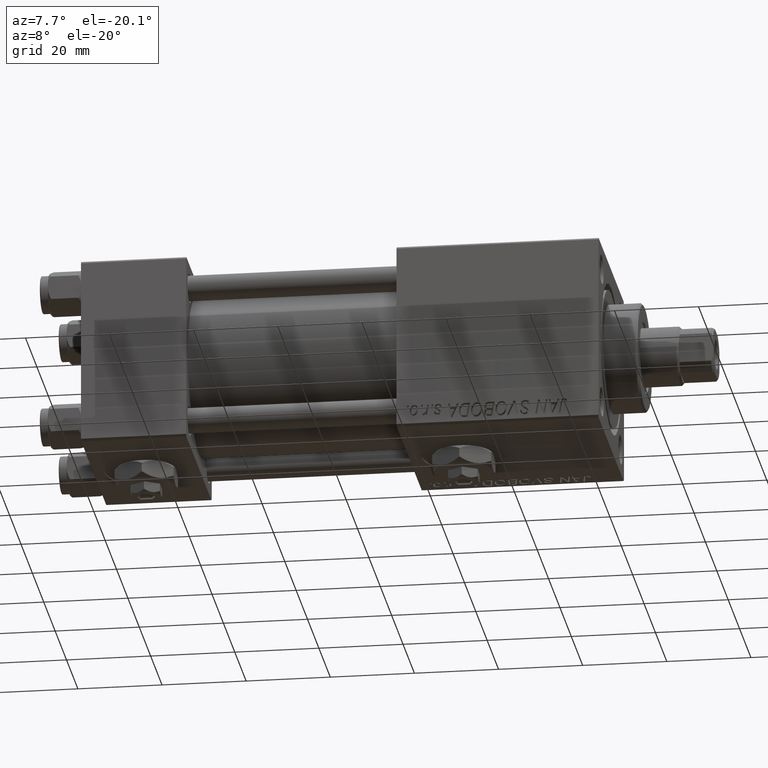
[diagram: clean part render]
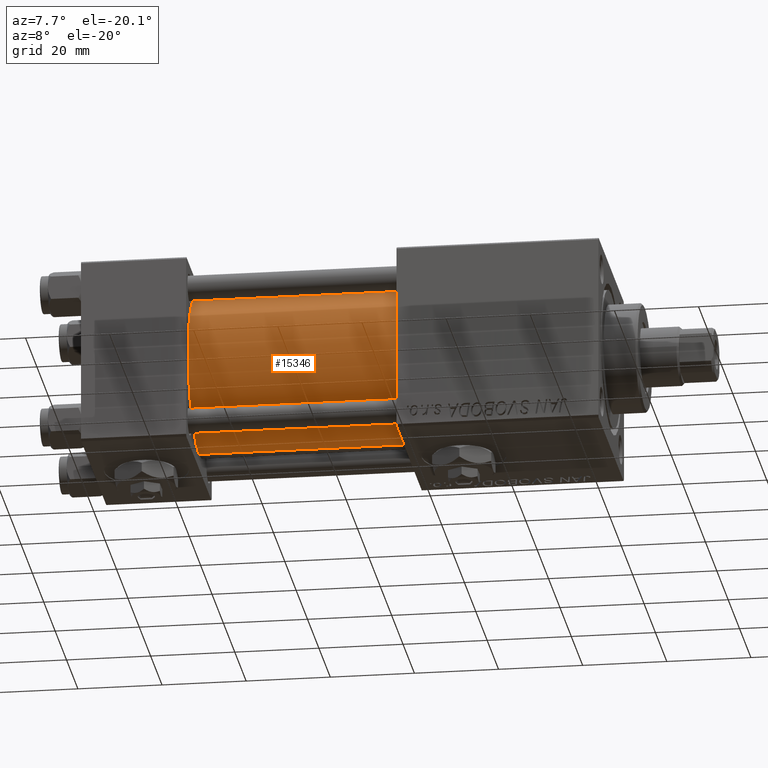
[diagram: same view with one face highlighted and labeled with its STEP entity id]
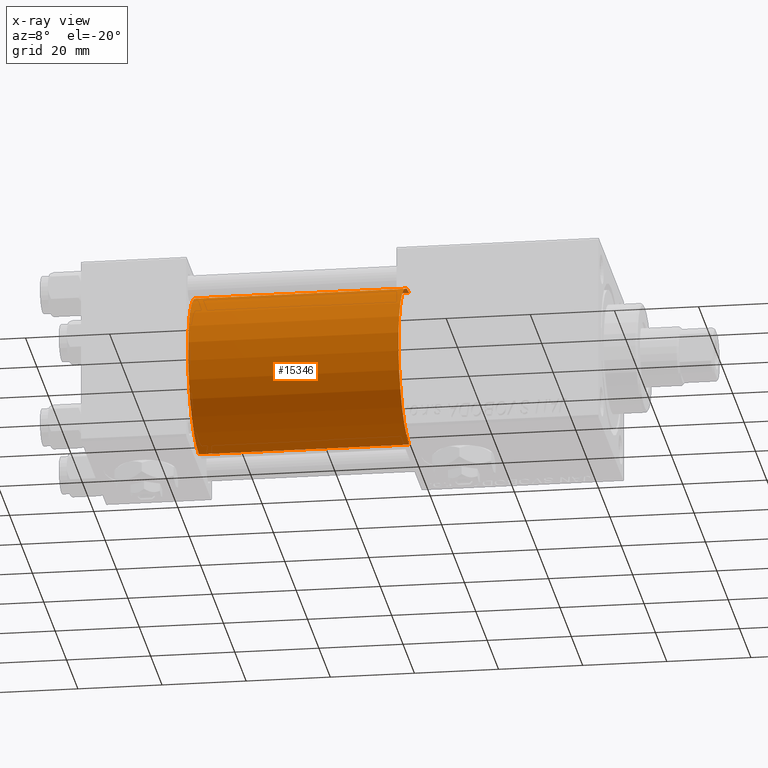
[diagram: x-ray of the same camera — body ghosted, the highlighted face saturated]
A machine part, auxiliary view. The second image highlights one B-rep face of the part: STEP entity #15346.
The next image is the same camera in x-ray: the body ghosted, the highlighted face saturated — about 0% of this face is hidden behind the body in this view.
In plain terms, the highlighted cylindrical surface (partial cylindrical patch) has radius 19 mm, axis along (-1, -0, -0).
Its self-contained STEP definition (entity closure, byte-faithful):
#661 = VERTEX_POINT ( 'NONE', #18632 ) ;
#1718 = CARTESIAN_POINT ( 'NONE',  ( 75.00000000000001421, -2.602085213965210642E-15, 19.00000000000000000 ) ) ;
#2271 = CARTESIAN_POINT ( 'NONE',  ( 25.00000000000000000, -2.602085213965210642E-15, 19.00000000000000000 ) ) ;
#2373 = AXIS2_PLACEMENT_3D ( 'NONE', #49753, #12820, #32868 ) ;
#2673 = AXIS2_PLACEMENT_3D ( 'NONE', #45140, #5039, #37481 ) ;
#3748 = EDGE_CURVE ( 'NONE', #26505, #18916, #16892, .T. ) ;
#5039 = DIRECTION ( 'NONE',  ( 1.000000000000000000, -0.000000000000000000, 0.000000000000000000 ) ) ;
#6879 = CARTESIAN_POINT ( 'NONE',  ( 75.00000000000001421, -2.602085213965210642E-15, 0.000000000000000000 ) ) ;
#8992 = VERTEX_POINT ( 'NONE', #50865 ) ;
#12820 = DIRECTION ( 'NONE',  ( 1.000000000000000000, 0.000000000000000000, 0.000000000000000000 ) ) ;
#14323 = LINE ( 'NONE', #39124, #19608 ) ;
#14583 = EDGE_CURVE ( 'NONE', #26505, #8992, #30149, .T. ) ;
#14858 = DIRECTION ( 'NONE',  ( -1.000000000000000000, -0.000000000000000000, -0.000000000000000000 ) ) ;
#15346 = ADVANCED_FACE ( 'NONE', ( #40085 ), #30872, .T. ) ;
#16892 = LINE ( 'NONE', #45110, #26875 ) ;
#18632 = CARTESIAN_POINT ( 'NONE',  ( 25.00000000000000000, -2.752562955852396712E-16, -19.00000000000000000 ) ) ;
#18916 = VERTEX_POINT ( 'NONE', #2271 ) ;
#19608 = VECTOR ( 'NONE', #14858, 1000.000000000000000 ) ;
#20841 = DIRECTION ( 'NONE',  ( -1.000000000000000000, -0.000000000000000000, -0.000000000000000000 ) ) ;
#24397 = EDGE_LOOP ( 'NONE', ( #51673, #51523, #27515, #39725 ) ) ;
#26505 = VERTEX_POINT ( 'NONE', #1718 ) ;
#26798 = EDGE_CURVE ( 'NONE', #18916, #661, #38891, .T. ) ;
#26875 = VECTOR ( 'NONE', #20841, 1000.000000000000000 ) ;
#27515 = ORIENTED_EDGE ( 'NONE', *, *, #3748, .T. ) ;
#27939 = DIRECTION ( 'NONE',  ( -1.000000000000000000, -0.000000000000000000, -0.000000000000000000 ) ) ;
#30149 = CIRCLE ( 'NONE', #2373, 19.00000000000000000 ) ;
#30872 = CYLINDRICAL_SURFACE ( 'NONE', #40243, 19.00000000000000000 ) ;
#32868 = DIRECTION ( 'NONE',  ( 0.000000000000000000, 0.000000000000000000, -1.000000000000000000 ) ) ;
#37481 = DIRECTION ( 'NONE',  ( 0.000000000000000000, 0.000000000000000000, 1.000000000000000000 ) ) ;
#38891 = CIRCLE ( 'NONE', #2673, 19.00000000000000000 ) ;
#39124 = CARTESIAN_POINT ( 'NONE',  ( 75.00000000000001421, -2.752562955852396712E-16, -19.00000000000000000 ) ) ;
#39725 = ORIENTED_EDGE ( 'NONE', *, *, #26798, .T. ) ;
#40085 = FACE_OUTER_BOUND ( 'NONE', #24397, .T. ) ;
#40243 = AXIS2_PLACEMENT_3D ( 'NONE', #6879, #27939, #43761 ) ;
#43761 = DIRECTION ( 'NONE',  ( 0.000000000000000000, 0.000000000000000000, 1.000000000000000000 ) ) ;
#45110 = CARTESIAN_POINT ( 'NONE',  ( 75.00000000000001421, -2.602085213965210642E-15, 19.00000000000000000 ) ) ;
#45140 = CARTESIAN_POINT ( 'NONE',  ( 25.00000000000000000, -2.602085213965210642E-15, 0.000000000000000000 ) ) ;
#49591 = EDGE_CURVE ( 'NONE', #8992, #661, #14323, .T. ) ;
#49753 = CARTESIAN_POINT ( 'NONE',  ( 75.00000000000001421, -2.602085213965210642E-15, 0.000000000000000000 ) ) ;
#50865 = CARTESIAN_POINT ( 'NONE',  ( 75.00000000000001421, -2.752562955852396712E-16, -19.00000000000000000 ) ) ;
#51523 = ORIENTED_EDGE ( 'NONE', *, *, #14583, .F. ) ;
#51673 = ORIENTED_EDGE ( 'NONE', *, *, #49591, .F. ) ;